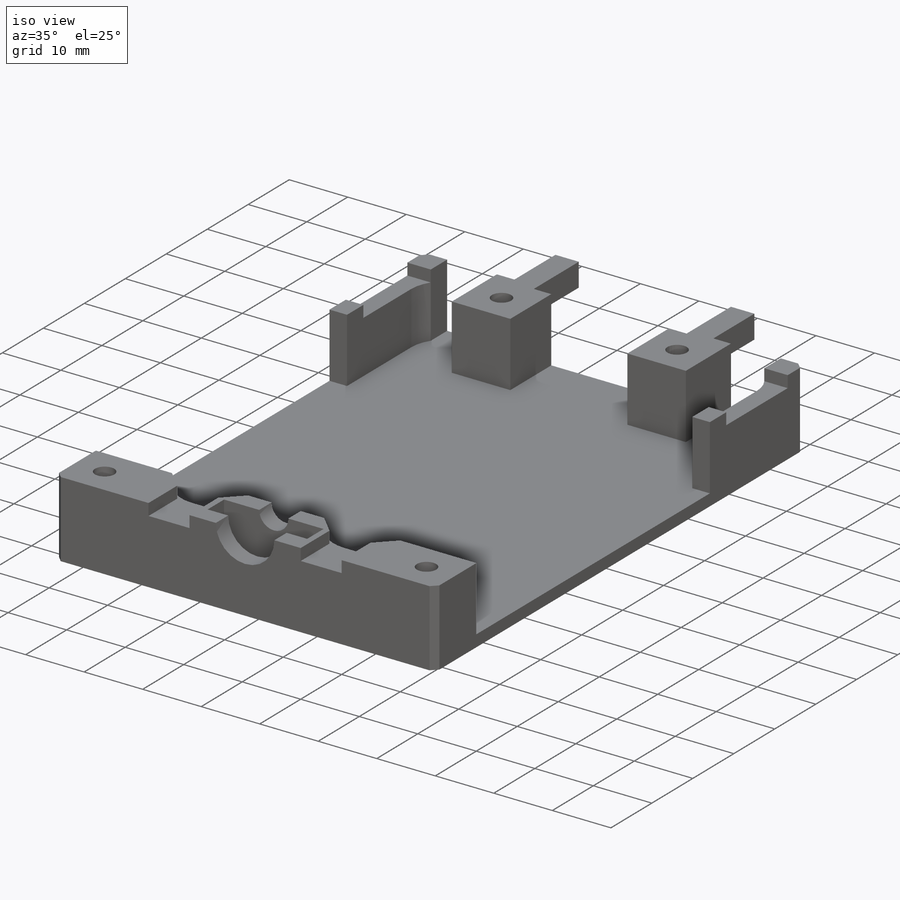
[diagram: iso view]
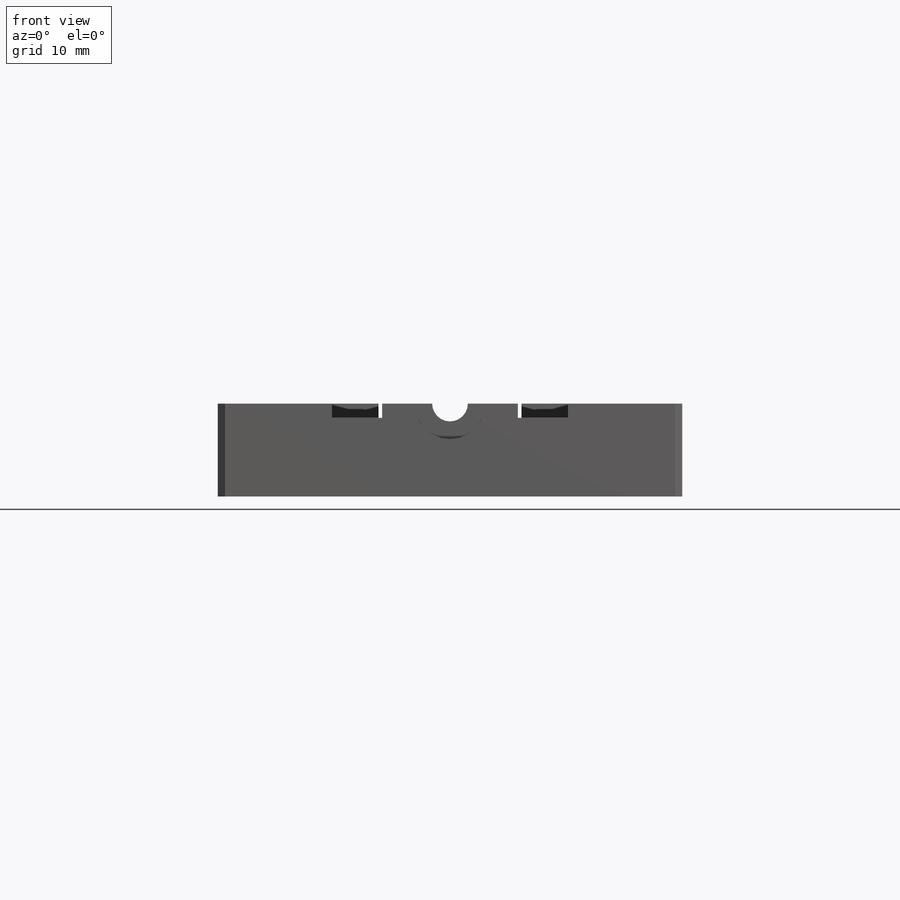
[diagram: front view]
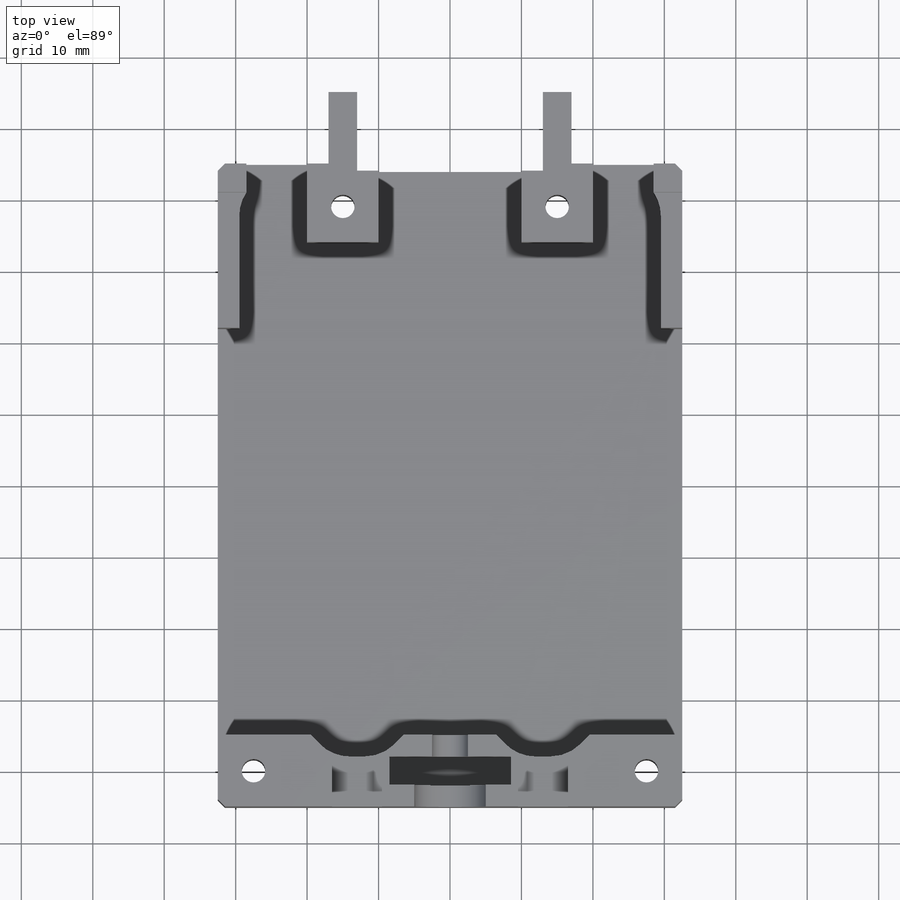
[diagram: top view]
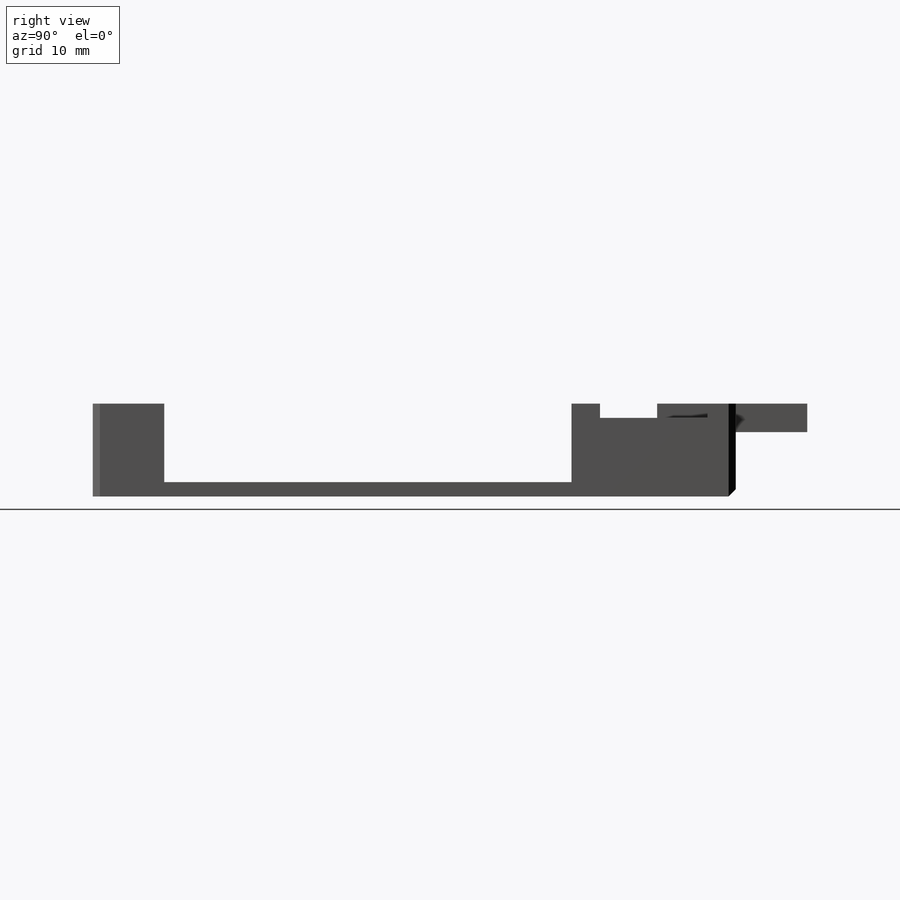
[diagram: right view]
SOLIDWORKS PART (.sldprt)
format: sldprt  version: not decoded by parser v0  size: 6,699,008 bytes
history: native  units: mm
features: sketch x12, thread x6, extrude x4, cut_extrude x4, chamfer x2, hole x2, material x1, fillet x1 (+15 scaffold rows collapsed)
feature tree (47):
  scaffold x15  (default folders/planes/origin — collapsed)
  material  "HDPE 500"
  sketch  "Sketch1"  dims[D1=65.0mm D2=90.0mm]
  extrude  "Extrude1"  Depth=2mm
  sketch  "Sketch2"  dims[c1.D1=19.0mm c1.D2=20.0mm c1.D3=20.0mm c2.D2=4.0mm c2.D3=10.0mm c2.D4=4.0mm c3.D2=25.0mm c3.D4=7.5mm c3.D5=5.0mm c3.D6=4.0mm c3.D7=3.0mm c3.D8=21.0mm c3.D9=10.0mm c3.D10=11.0mm c3.D11=10.0mm c3.D12=11.0mm c3.D13=7.75mm c3.D14=7.0mm c3.D15=8.0mm c3.D16=49.0mm c3.D17=6.0mm c3.D18=14.5mm c3.D19=4.0mm c3.D20=3.0mm c3.D21=10.0mm c3.D22=16.0mm c4.D8=20.0mm c4.D18=3.0mm c4.D23=8.0mm c4.D24=4.0mm c4.D25=8.0mm c4.D26=3.0mm c4.D27=4.0mm c4.D4=20.0mm c4.D5=4.0mm c4.D6=4.0mm]
  extrude  "Extrude2"  Depth=11mm
  sketch  "Sketch3"  dims[D1=5.0mm]
  cut_extrude  "Cut-Extrude1"  Depth=10mm
  sketch  "Sketch4"  dims[D1=17.0mm D2=4.0mm D3=3.0mm D4=10.0mm]
  cut_extrude  "Cut-Extrude2"  Depth=8.5mm
  sketch  "Sketch9"  dims[D1=4.0mm D2=4.0mm D3=4.0mm D4=4.0mm]
  extrude  "Extrude3"  Depth=10mm
  sketch  "Sketch10"  dims[c1.D1=3.0mm c1.D2=8.0mm c1.D3=8.0mm c1.D4=3.0mm c1.D5=8.0mm c1.D6=4.0mm c1.D7=8.0mm c1.D8=4.0mm c2.D5=5.0mm c2.D2=7.0mm]
  extrude  "Extrude4"  Depth=9mm
  chamfer  "Chamfer1"  Distance=1mm Angle=45deg
  chamfer  "Chamfer2"  Distance=3mm Angle=45deg
  fillet  "Fillet1"  Radius=6mm
  hole  "M3x0.5 Tapped Hole1"  Diameter=2.5mm Depth=7.5mm
  sketch  "3DSketch2"  dims[D1=25.0mm D2=6.5mm]
  sketch  "Sketch12"  dims[hole-wizard template sketch: 50 standard entries collapsed; hole parameters above]
  thread  "Hole Thread3"  Diameter=6mm  [1 undecoded]
  thread  "Hole Thread4"  Diameter=6mm  [1 undecoded]
  sketch  "Sketch13"
  cut_extrude  "Cut-Extrude3"  Depth=1mm
  hole  "M4x0.7 Tapped Hole2"  Diameter=3.3mm Depth=13mm
  sketch  "3DSketch3"  dims[D1=5.0mm D2=5.0mm D3=5.0mm D4=5.0mm D5=5.0mm D6=5.0mm D7=5.0mm D8=5.0mm]
  sketch  "Sketch15"  dims[hole-wizard template sketch: 60 standard entries collapsed; hole parameters kept: c18.Thru Tap Drill Depth=13.0mm]
  thread  "Hole Thread5"  Diameter=4mm  [1 undecoded]
  thread  "Hole Thread6"  Diameter=4mm  [1 undecoded]
  thread  "Hole Thread7"  Diameter=4mm  [1 undecoded]
  thread  "Hole Thread8"  Diameter=4mm  [1 undecoded]
  sketch  "Sketch19"  dims[D1=10.0mm]
  cut_extrude  "Cut-Extrude8"  Depth=4mm
decode coverage: 30 of 31 modeling features carry decoded parameters
note: ~ marks probable driven/reference dimensions
note: 6 parameter values undecoded
note: suppression state not decoded; provenance and decode notes live in map.json
